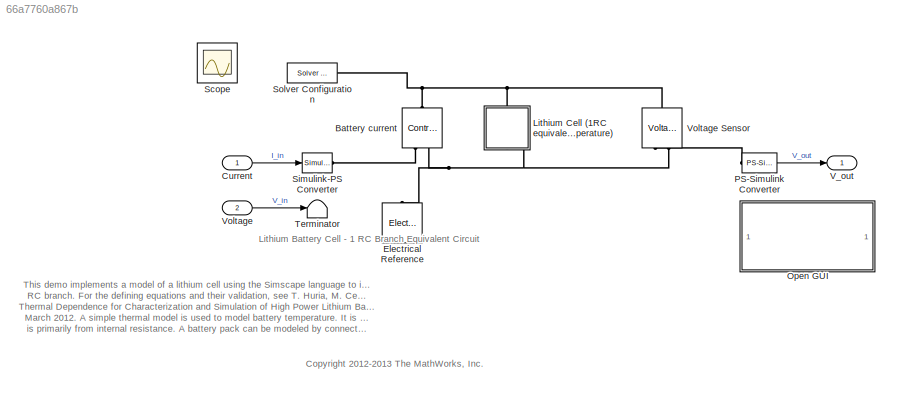
MODEL slx_66a7760a867b
KIND model
CONFIG AbsTol = auto
CONFIG EnableMultiTasking = on
CONFIG FixedStep = auto
CONFIG MaxStep = 250
CONFIG MinStep = auto
CONFIG PreLoadFcn = ssc_lithium_cell_1RC_estim_ini
CONFIG RelTol = 1e-3
CONFIG SampleTimeConstraint = Unconstrained
CONFIG Solver = ode15s
CONFIG SolverName = ode15s
CONFIG StartTime = 0
CONFIG StopTime = 37000
BLOCK [Reference] Battery current  REF=fl_lib/Electrical/Electrical Sources/Controlled Current
Source
  Ports = [0, 0, 0, 0, 0, 1, 2]
  SourceBlock = fl_lib/Electrical/Electrical Sources/Controlled Current\nSource
  SourceProductBaseCode = SS
  SourceProductName = Simscape
  SourceType = Controlled Current\nSource
BLOCK [Inport] Current
  IconDisplay = Port number
BLOCK [Reference] Electrical Reference  REF=fl_lib/Electrical/Electrical Elements/Electrical Reference
  Ports = [0, 0, 0, 0, 0, 1]
  SourceBlock = fl_lib/Electrical/Electrical Elements/Electrical Reference
  SourceProductBaseCode = SS
  SourceProductName = Simscape
  SourceType = Electrical Reference
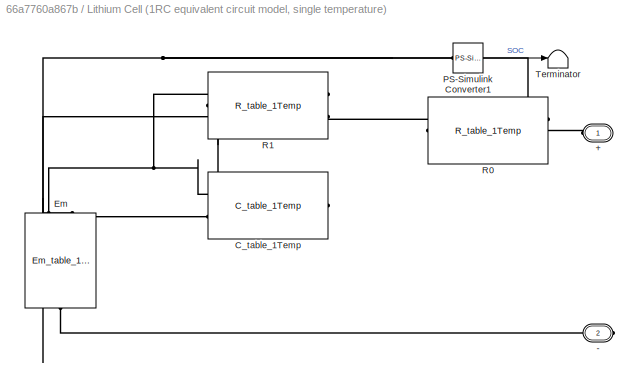
BLOCK [SubSystem] Lithium Cell (1RC equivalent circuit model, single temperature)
  Ports = [0, 0, 0, 0, 0, 1, 1]
  RequestExecContextInheritance = off
BLOCK [PMIOPort] Lithium Cell (1RC equivalent circuit model, single temperature)/+
  Side = Left
  Tag = PMCPort
BLOCK [PMIOPort] Lithium Cell (1RC equivalent circuit model, single temperature)/-
  Port = 2
  Side = Right
  Tag = PMCPort
BLOCK [Reference] Lithium Cell (1RC equivalent circuit model, single temperature)/C_table_1Temp  REF=LiBatteryElements_lib/C_table_1Temp
  Ports = [0, 0, 0, 0, 0, 2, 1]
  SourceBlock = LiBatteryElements_lib/C_table_1Temp
  SourceType = C_table_1Temp
BLOCK [Reference] Lithium Cell (1RC equivalent circuit model, single temperature)/Em  REF=LiBatteryElements_lib/Em_table_1Temp
  Ports = [0, 0, 0, 0, 0, 2, 1]
  SourceBlock = LiBatteryElements_lib/Em_table_1Temp
  SourceType = Em_table_1Temp
BLOCK [Reference] Lithium Cell (1RC equivalent circuit model, single temperature)/PS-Simulink Converter1  REF=nesl_utility/PS-Simulink
Converter
  Ports = [0, 1, 0, 0, 0, 1]
  SourceBlock = nesl_utility/PS-Simulink\nConverter
  SourceProductBaseCode = SS
  SourceProductName = Simscape
  SourceType = PS-Simulink\nConverter
BLOCK [Reference] Lithium Cell (1RC equivalent circuit model, single temperature)/R0  REF=LiBatteryElements_lib/R_table_1Temp
  Ports = [0, 0, 0, 0, 0, 2, 1]
  SourceBlock = LiBatteryElements_lib/R_table_1Temp
  SourceType = R_table_1Temp
BLOCK [Reference] Lithium Cell (1RC equivalent circuit model, single temperature)/R1  REF=LiBatteryElements_lib/R_table_1Temp
  Ports = [0, 0, 0, 0, 0, 2, 1]
  SourceBlock = LiBatteryElements_lib/R_table_1Temp
  SourceType = R_table_1Temp
BLOCK [Terminator] Lithium Cell (1RC equivalent circuit model, single temperature)/Terminator
BLOCK [SubSystem] Open GUI
  OpenFcn = speload('ssc_lithium_cell_SDO_Project', 'Project - ssc_lithium_cell_1RC_estim', 'One Temp Estim');
  Ports = []
  RequestExecContextInheritance = off
BLOCK [Reference] PS-Simulink Converter  REF=nesl_utility/PS-Simulink
Converter
  Ports = [0, 1, 0, 0, 0, 1]
  SourceBlock = nesl_utility/PS-Simulink\nConverter
  SourceProductBaseCode = SS
  SourceProductName = Simscape
  SourceType = PS-Simulink\nConverter
BLOCK [Scope] Scope
  Floating = off
  IOType = viewer
  NumInputPorts = 1
  Ports = []
  ScopeSpecificationString = C++SS(StrPVP('Location','[776, 56, 1684, 859]'),StrPVP('Open','on'),MxPVP('AxesTitles',54,'struct(''axes1'',''%<SignalLabel>'',''axes2'',''%<SignalLabel>'',''axes3'',''%<SignalLabel>'')'),StrPVP('ShowDataMarkers','off'),StrPVP('ShowLegends','off'),StrPVP('TimeRange','40000'),StrPVP('YMin','3.15~-30~0'),StrPVP('YMax','4.25~2~1'),StrPVP('LimitDataPoints','off'),StrPVP('MaxDataPoints','7500'),StrPVP(...<+112ch>
BLOCK [Reference] Simulink-PS Converter  REF=nesl_utility/Simulink-PS
Converter
  Ports = [1, 0, 0, 0, 0, 0, 1]
  SourceBlock = nesl_utility/Simulink-PS\nConverter
  SourceProductBaseCode = SS
  SourceProductName = Simscape
  SourceType = Simulink-PS\nConverter
BLOCK [Reference] Solver Configuration  REF=nesl_utility/Solver
Configuration
  Ports = [0, 0, 0, 0, 0, 0, 1]
  SourceBlock = nesl_utility/Solver\nConfiguration
  SourceProductBaseCode = SS
  SourceProductName = Simscape
  SourceType = Solver\nConfiguration
BLOCK [Terminator] Terminator
BLOCK [Outport] V_out
  IconDisplay = Port number
BLOCK [Inport] Voltage
  IconDisplay = Port number
  Port = 2
BLOCK [Reference] Voltage Sensor  REF=fl_lib/Electrical/Electrical Sensors/Voltage Sensor
  Ports = [0, 0, 0, 0, 0, 1, 2]
  SourceBlock = fl_lib/Electrical/Electrical Sensors/Voltage Sensor
  SourceProductBaseCode = SS
  SourceProductName = Simscape
  SourceType = Voltage Sensor
ANNOTATION (root): <copyright redacted>
ANNOTATION (root): Lithium Battery Cell - 1 RC Branch Equivalent Circuit
ANNOTATION (root): This demo implements a model of a lithium cell using the Simscape language to implement the elements of an equivalent circuit model with one RC branch. For the defining equations and their validation, see T. Huria, M. Ceraolo, J. Gazzarri, R. Jackey. "High Fidelity Electrical Model with Thermal Dependence for Characterization and Simulation of High Power Lithium Battery Cells," IEEE International ...<+310ch>
LINE Current:1 -> Simulink-PS Converter:1
LINE Lithium Cell (1RC equivalent circuit model, single temperature)/PS-Simulink Converter1:1 -> Lithium Cell (1RC equivalent circuit model, single temperature)/Terminator:1
LINE PS-Simulink Converter:1 -> V_out:1
LINE Voltage:1 -> Terminator:1
PNET net1: Battery current:LConn1 -- Lithium Cell (1RC equivalent circuit model, single temperature):LConn1 -- Solver Configuration:RConn1 -- Voltage Sensor:LConn1
PLINE Battery current:RConn1 -- Simulink-PS Converter:RConn1
PNET net2: Battery current:RConn2 -- Electrical Reference:LConn1 -- Lithium Cell (1RC equivalent circuit model, single temperature):RConn1 -- Voltage Sensor:RConn2
PLINE Lithium Cell (1RC equivalent circuit model, single temperature)/+:RConn1 -- Lithium Cell (1RC equivalent circuit model, single temperature)/R0:RConn1
PLINE Lithium Cell (1RC equivalent circuit model, single temperature)/-:RConn1 -- Lithium Cell (1RC equivalent circuit model, single temperature)/Em:RConn1
PNET net3: Lithium Cell (1RC equivalent circuit model, single temperature)/C_table_1Temp:LConn1 -- Lithium Cell (1RC equivalent circuit model, single temperature)/Em:LConn1 -- Lithium Cell (1RC equivalent circuit model, single temperature)/R1:LConn1
PNET net4: Lithium Cell (1RC equivalent circuit model, single temperature)/C_table_1Temp:LConn2 -- Lithium Cell (1RC equivalent circuit model, single temperature)/Em:LConn2 -- Lithium Cell (1RC equivalent circuit model, single temperature)/PS-Simulink Converter1:LConn1 -- Lithium Cell (1RC equivalent circuit model, single temperature)/R0:LConn2 -- Lithium Cell (1RC equivalent circuit model, single temperature)/R1:LConn2
PNET net5: Lithium Cell (1RC equivalent circuit model, single temperature)/C_table_1Temp:RConn1 -- Lithium Cell (1RC equivalent circuit model, single temperature)/R0:LConn1 -- Lithium Cell (1RC equivalent circuit model, single temperature)/R1:RConn1
PLINE PS-Simulink Converter:LConn1 -- Voltage Sensor:RConn1
note: PNET lines group multi-terminal physical nets as a canonical sorted terminal list (undirected conserving connections); 2-terminal nets keep the pairwise PLINE form
